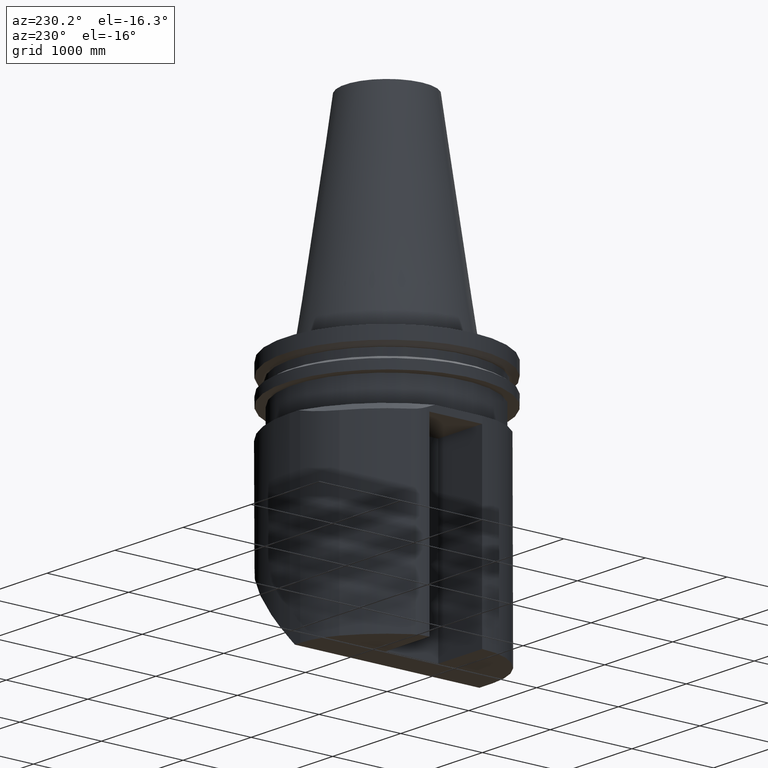
[diagram: clean part render]
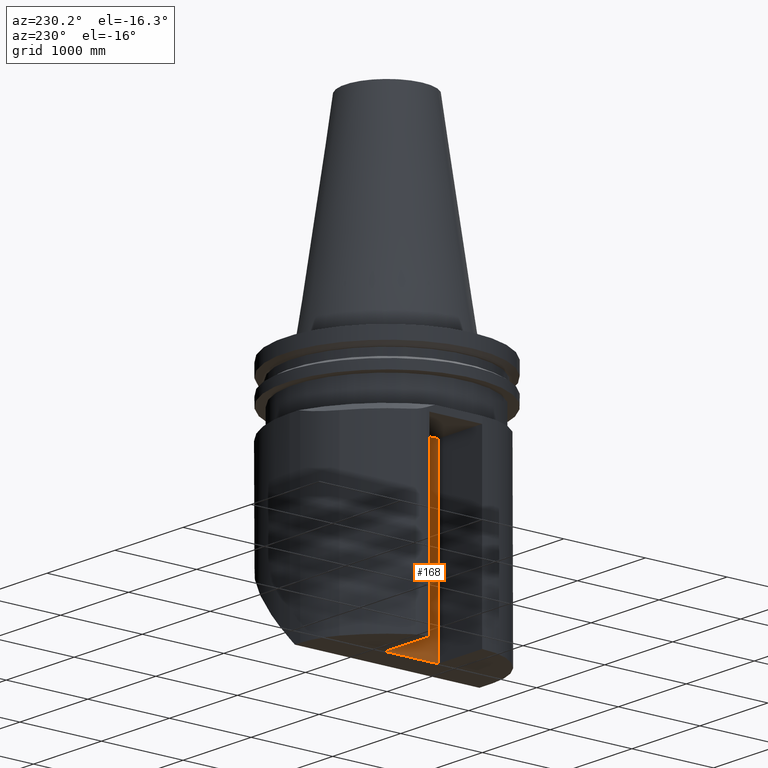
[diagram: same view with one face highlighted and labeled with its STEP entity id]
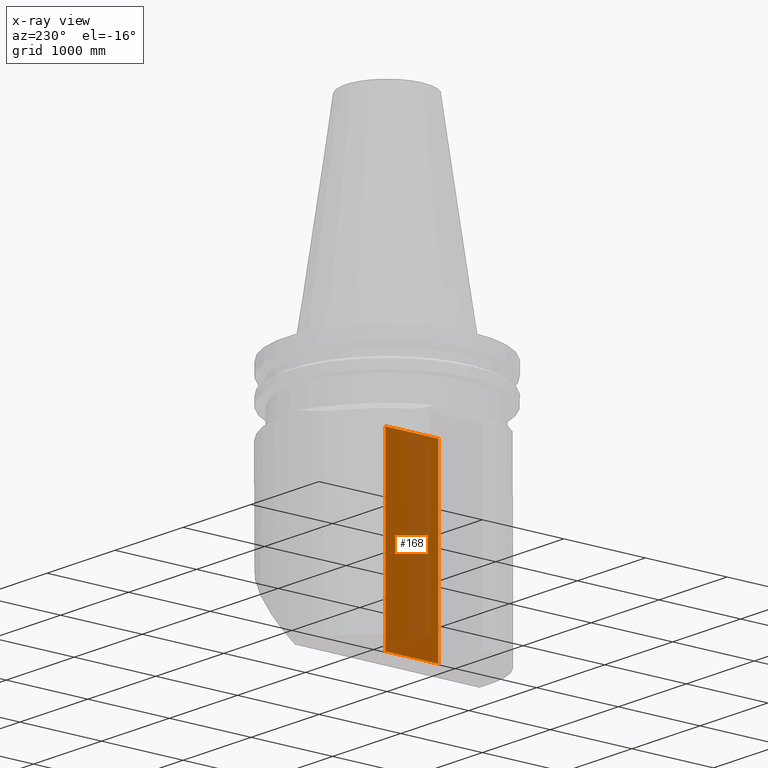
[diagram: x-ray of the same camera — body ghosted, the highlighted face saturated]
A machine part, auxiliary view. The second image highlights one B-rep face of the part: STEP entity #168.
The next image is the same camera in x-ray: the body ghosted, the highlighted face saturated — about 36% of this face is hidden behind the body in this view.
In plain terms, the highlighted planar face has unit normal (1, -0, 0).
Its self-contained STEP definition (entity closure, byte-faithful):
#121=EDGE_CURVE('Unnamed[1]',#361,#362,#363,.T.);
#123=EDGE_CURVE('Unnamed[1]',#365,#361,#366,.T.);
#127=EDGE_CURVE('Unnamed[1]',#365,#372,#373,.T.);
#168=ADVANCED_FACE('Unnamed[1]',(#435),#436,.F.);
#224=EDGE_CURVE('Unnamed[1]',#362,#372,#515,.T.);
#361=VERTEX_POINT('',#678);
#362=VERTEX_POINT('',#679);
#363=LINE('',#680,#681);
#365=VERTEX_POINT('',#684);
#366=LINE('',#685,#686);
#372=VERTEX_POINT('',#695);
#373=LINE('',#696,#697);
#435=FACE_OUTER_BOUND('',#778,.T.);
#436=PLANE('',#779);
#515=LINE('',#896,#897);
#678=CARTESIAN_POINT('',(-29.6000000000001,2.37728064130023E-013,-38.1));
#679=CARTESIAN_POINT('',(-29.6000000000001,2.32406973787728E-013,-125.0));
#680=CARTESIAN_POINT('',(-29.6000000000001,2.20772829195828E-013,-315.0));
#681=VECTOR('',#1153,1.0);
#684=CARTESIAN_POINT('',(-29.6000000000001,25.4000000000003,-38.1));
#685=CARTESIAN_POINT('',(-29.6000000000001,25.4000000000003,-38.1));
#686=VECTOR('',#1154,1.0);
#695=CARTESIAN_POINT('',(-29.6000000000001,25.4000000000003,-125.0));
#696=CARTESIAN_POINT('',(-29.6000000000001,25.4000000000003,-315.0));
#697=VECTOR('',#1156,1.0);
#778=EDGE_LOOP('',(#1241,#1242,#1243,#1244));
#779=AXIS2_PLACEMENT_3D('',#1245,#1246,#1247);
#896=CARTESIAN_POINT('',(-29.6000000000001,6.35000000000013,-125.0));
#897=VECTOR('',#1334,1.0);
#1153=DIRECTION('',(1.22464679914735E-016,-6.12323399573677E-017,-1.0));
#1154=DIRECTION('',(-5.68496996977184E-016,-1.0,6.12323399573677E-017));
#1156=DIRECTION('',(1.22464679914735E-016,-6.12323399573677E-017,-1.0));
#1241=ORIENTED_EDGE('',*,*,#224,.F.);
#1242=ORIENTED_EDGE('',*,*,#121,.F.);
#1243=ORIENTED_EDGE('',*,*,#123,.F.);
#1244=ORIENTED_EDGE('',*,*,#127,.T.);
#1245=CARTESIAN_POINT('',(-29.6000000000001,12.7000000000002,-315.0));
#1246=DIRECTION('',(1.0,-5.68496996977184E-016,1.22464679914735E-016));
#1247=DIRECTION('',(5.68496996977184E-016,1.0,-6.12323399573677E-017));
#1334=DIRECTION('',(5.68496996977184E-016,1.0,-6.12323399573676E-017));